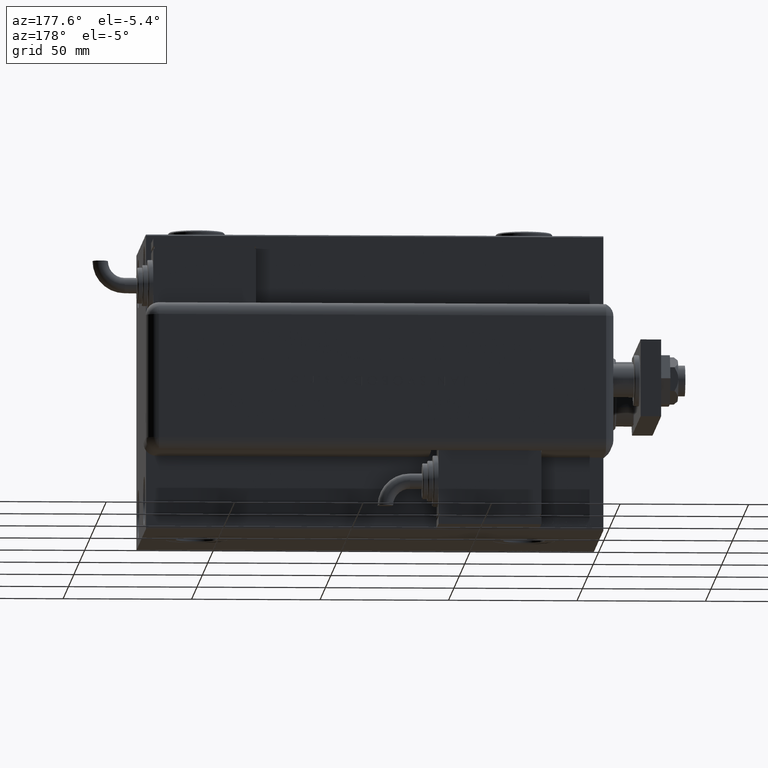
[diagram: clean part render]
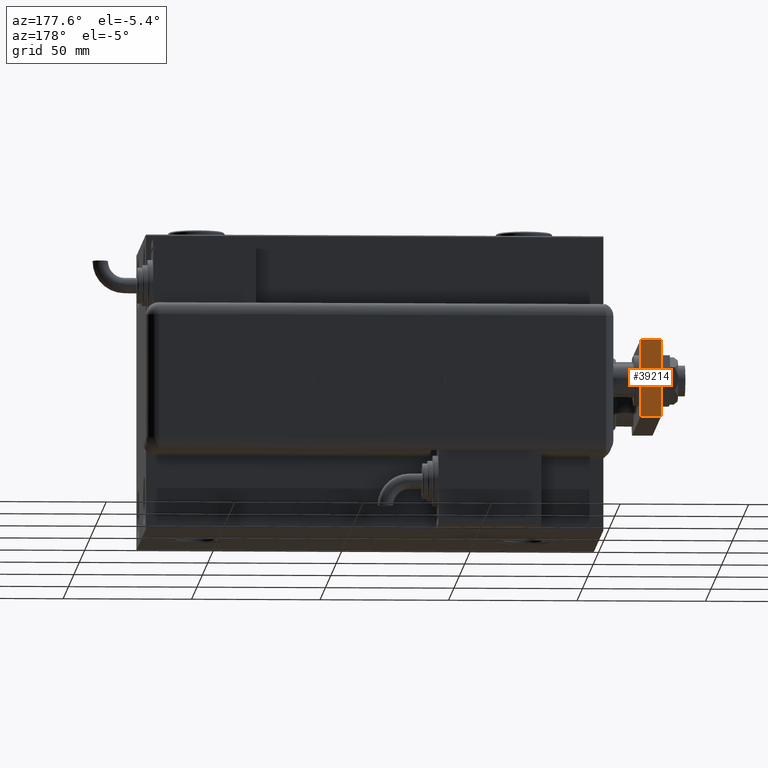
[diagram: same view with one face highlighted and labeled with its STEP entity id]
A machine part, auxiliary view. The second image highlights one B-rep face of the part: STEP entity #39214.
In plain terms, the highlighted planar face has unit normal (0, -1, -0).
Its self-contained STEP definition (entity closure, byte-faithful):
#3194 = DIRECTION ( 'NONE',  ( 0.000000000000000000, -0.000000000000000000, -1.000000000000000000 ) ) ;
#5398 = VECTOR ( 'NONE', #35917, 1000.000000000000000 ) ;
#7696 = ORIENTED_EDGE ( 'NONE', *, *, #53767, .T. ) ;
#7831 = CARTESIAN_POINT ( 'NONE',  ( 15.00000000000000178, 85.00000000000000000, 0.000000000000000000 ) ) ;
#7899 = DIRECTION ( 'NONE',  ( -1.000000000000000000, 0.000000000000000000, 0.000000000000000000 ) ) ;
#8395 = VERTEX_POINT ( 'NONE', #26382 ) ;
#8458 = VERTEX_POINT ( 'NONE', #31944 ) ;
#12165 = CARTESIAN_POINT ( 'NONE',  ( -15.00000000000000000, 85.00000000000000000, 8.000000000000000000 ) ) ;
#12186 = ORIENTED_EDGE ( 'NONE', *, *, #14112, .F. ) ;
#12225 = CARTESIAN_POINT ( 'NONE',  ( 15.00000000000000178, 85.00000000000000000, 8.000000000000000000 ) ) ;
#14112 = EDGE_CURVE ( 'NONE', #8395, #8458, #35988, .T. ) ;
#16479 = CARTESIAN_POINT ( 'NONE',  ( 15.00000000000000178, 85.00000000000000000, 8.000000000000000000 ) ) ;
#16933 = AXIS2_PLACEMENT_3D ( 'NONE', #16479, #45203, #3194 ) ;
#18141 = ORIENTED_EDGE ( 'NONE', *, *, #61018, .T. ) ;
#18476 = VECTOR ( 'NONE', #36727, 1000.000000000000000 ) ;
#20262 = VERTEX_POINT ( 'NONE', #36416 ) ;
#26382 = CARTESIAN_POINT ( 'NONE',  ( 15.00000000000000178, 85.00000000000000000, 8.000000000000000000 ) ) ;
#31280 = FACE_OUTER_BOUND ( 'NONE', #59651, .T. ) ;
#31944 = CARTESIAN_POINT ( 'NONE',  ( -15.00000000000000000, 85.00000000000000000, 8.000000000000000000 ) ) ;
#35917 = DIRECTION ( 'NONE',  ( -1.000000000000000000, 0.000000000000000000, 0.000000000000000000 ) ) ;
#35988 = LINE ( 'NONE', #12225, #57659 ) ;
#36416 = CARTESIAN_POINT ( 'NONE',  ( -15.00000000000000000, 85.00000000000000000, 0.000000000000000000 ) ) ;
#36418 = LINE ( 'NONE', #50044, #18476 ) ;
#36563 = ORIENTED_EDGE ( 'NONE', *, *, #56753, .F. ) ;
#36727 = DIRECTION ( 'NONE',  ( -0.000000000000000000, -0.000000000000000000, -1.000000000000000000 ) ) ;
#39214 = ADVANCED_FACE ( 'NONE', ( #31280 ), #58834, .F. ) ;
#45203 = DIRECTION ( 'NONE',  ( 0.000000000000000000, -1.000000000000000000, 0.000000000000000000 ) ) ;
#50044 = CARTESIAN_POINT ( 'NONE',  ( 15.00000000000000178, 85.00000000000000000, 8.000000000000000000 ) ) ;
#53767 = EDGE_CURVE ( 'NONE', #59850, #20262, #59731, .T. ) ;
#54796 = DIRECTION ( 'NONE',  ( -0.000000000000000000, -0.000000000000000000, -1.000000000000000000 ) ) ;
#55525 = CARTESIAN_POINT ( 'NONE',  ( 15.00000000000000178, 85.00000000000000000, 0.000000000000000000 ) ) ;
#56753 = EDGE_CURVE ( 'NONE', #8458, #20262, #59135, .T. ) ;
#57659 = VECTOR ( 'NONE', #7899, 1000.000000000000000 ) ;
#58772 = VECTOR ( 'NONE', #54796, 1000.000000000000000 ) ;
#58834 = PLANE ( 'NONE',  #16933 ) ;
#59135 = LINE ( 'NONE', #12165, #58772 ) ;
#59651 = EDGE_LOOP ( 'NONE', ( #7696, #36563, #12186, #18141 ) ) ;
#59731 = LINE ( 'NONE', #7831, #5398 ) ;
#59850 = VERTEX_POINT ( 'NONE', #55525 ) ;
#61018 = EDGE_CURVE ( 'NONE', #8395, #59850, #36418, .T. ) ;